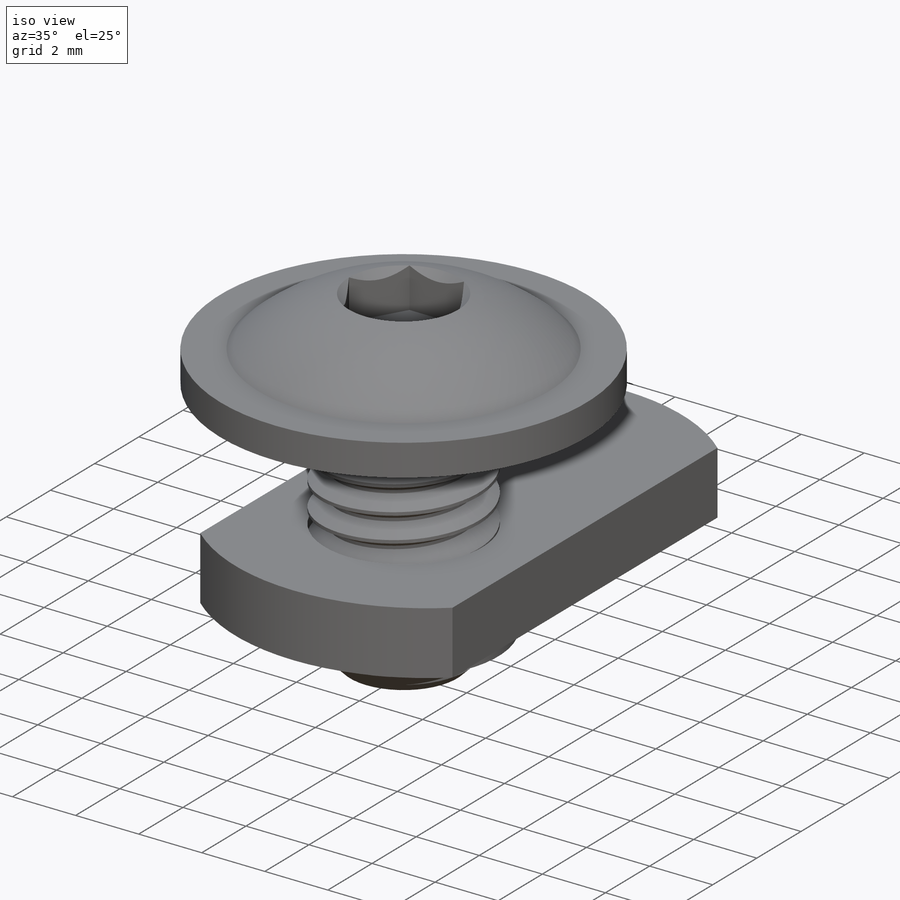
[diagram: iso view]
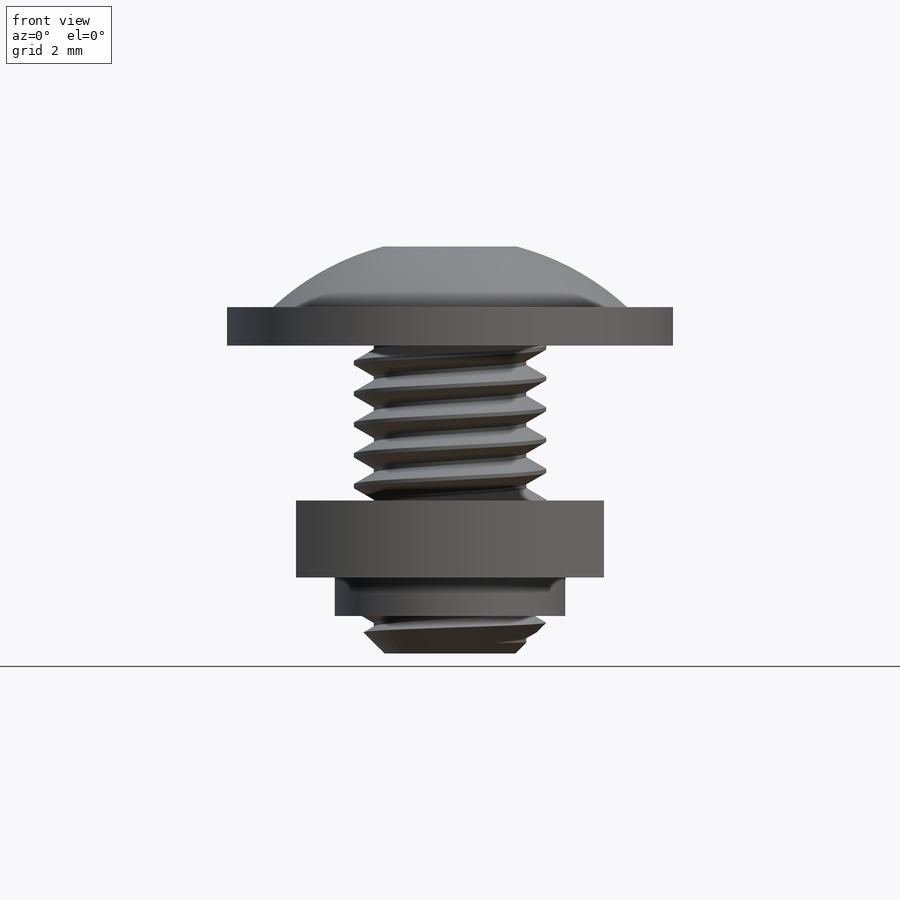
[diagram: front view]
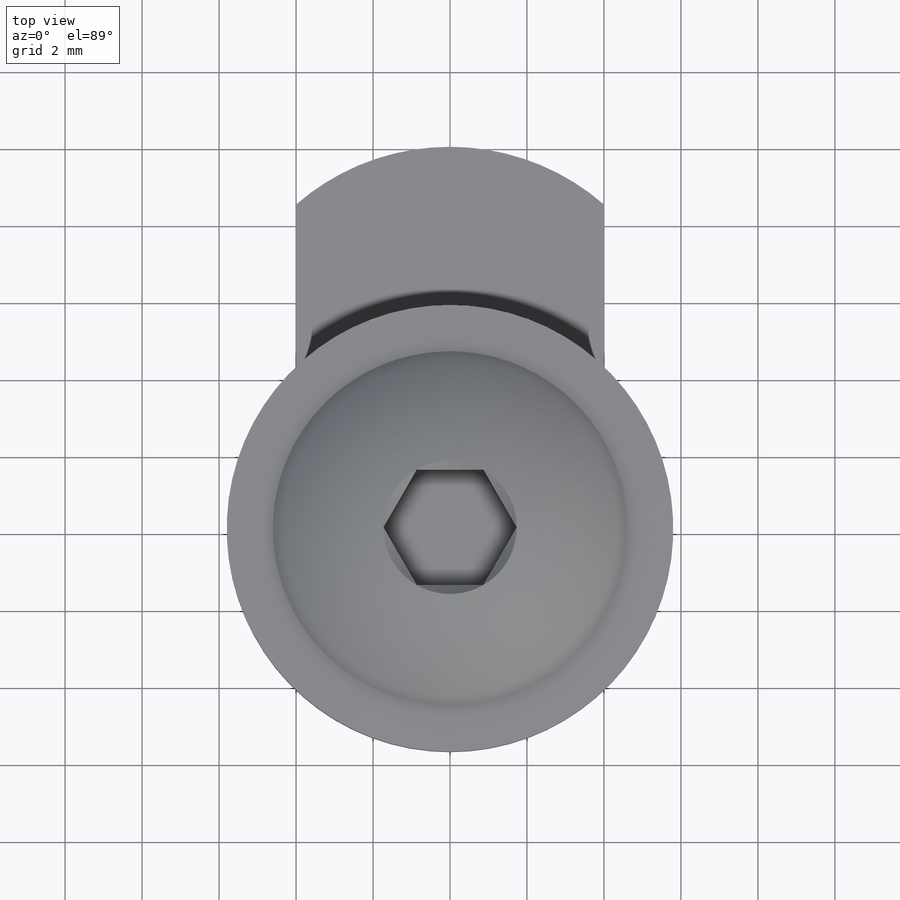
[diagram: top view]
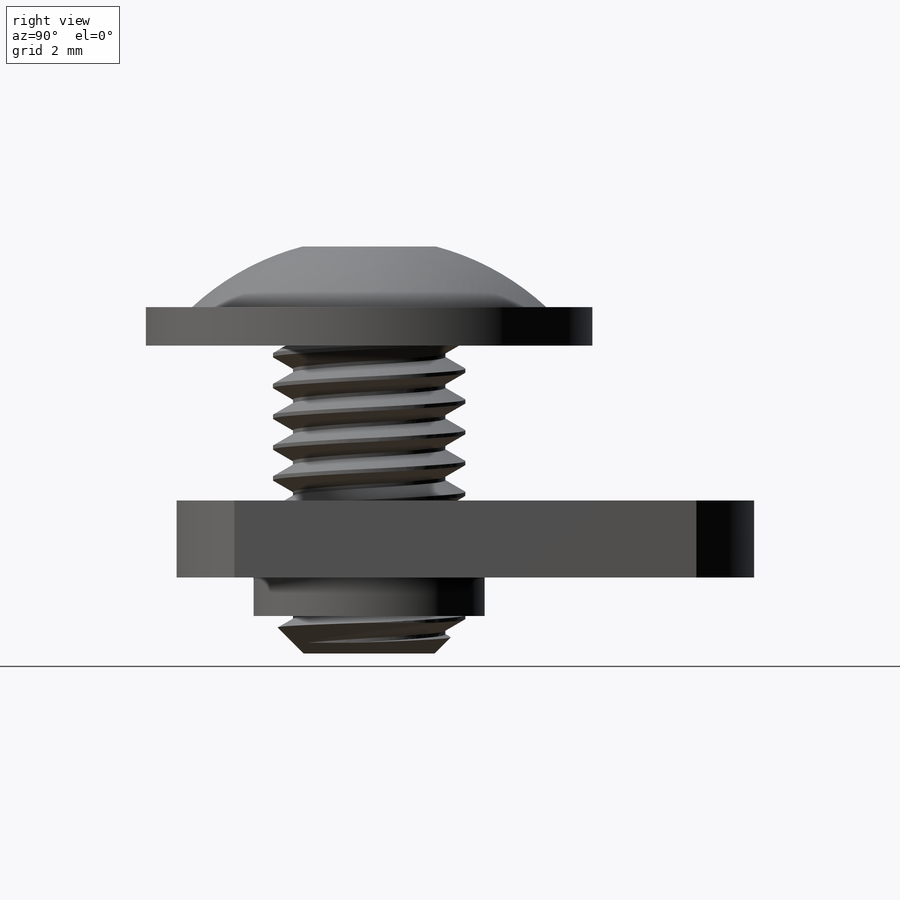
[diagram: right view]
SOLIDWORKS PART (.sldprt)
format: sldprt  version: not decoded by parser v0  size: 762,368 bytes
history: native  units: mm
features: sketch x20, cut_extrude x7, extrude x6, revolve x4, plane x3, pattern_linear x2, material x1, helix x1, chamfer x1, sweep x1 (+18 scaffold rows collapsed; 6 parser-record rows omitted)
feature tree (70):
  scaffold x18  (default folders/planes/origin — collapsed)
  material  "Material <not specified>"
  sketch  "Sketch1"  dims[screw od=5.0mm head od=9.2mm D3=7.44mm D4=1.0mm head height=2.8mm screw length=8.0mm]
  sketch  "Sketch2"
  revolve  "Revolve2"  Angle=360deg
  sketch  "Sketch3"  dims[D1=0.0mm]
  helix  "Helix/Spiral1"  Pitch=8.1875mm pitch=0.8mm
  chamfer  "Chamfer1"  Distance=0.8mm Angle=45deg
  sketch  "Sketch4"  dims[c1.D1=~1.318145mm c2.D1=60.0deg c2.D2=0.1mm c2.D3=0.4mm]
  sweep  "Cut-Sweep1"
  sketch  "Sketch5"
  revolve  "Revolve3"  Angle=360deg
  sketch  "Sketch20"  dims[D1=11.6mm]
  extrude  "Boss-Extrude1"  Depth=1mm
  plane  "Plane1"
  sketch  "Sketch6"  dims[hex=3.0mm]
  cut_extrude  "Cut-Extrude1"  Depth=1.5mm
  plane  "Plane2"
  sketch  "Sketch7"
  cut_extrude  "Cut-Extrude2"  [1 undecoded]
  plane  "Plane3"  Offset=5.525mm
  parser-record x6  (decoder bookkeeping rows leaked as tree rows — omitted from the tree; the rows remain in map.json)
  sketch  "Sketch8"  dims[c1.D1=5.0mm c1.D4=6.35mm c1.D5=6.35mm c1.D3=~7.20722mm c2.D4=5.0mm c2.D2=8.0mm c2.D3=15.0mm c3.D4=5.0mm c3.D1=12.0mm c4.D4=5.0mm]
  extrude  "Extrude1"  Depth=3mm
  sketch  "Sketch9"  dims[c1.D2=6.0mm c1.D1=0.0mm c2.D2=1.524mm]
  cut_extrude  "Cut-Extrude3"  Depth=2mm
  sketch  "Sketch10"  dims[c1.D2=~12.425077mm c1.D3=~8.686927mm c1.D4=~9.911413mm c1.D5=5.0mm c2.D2=~11.103034mm c2.D1=~8.527663mm c3.D2=7.9375mm c3.D6=~9.247188mm c3.D7=~9.247188mm c4.D2=5.0mm c4.D1=16.51mm c5.D2=25.4mm c5.D3=5.08mm c5.D4=3.9624mm c5.D1=3.9624mm c6.D2=25.4mm c6.D1=3.9624mm c6.D3=8.0mm c7.D1=15.0mm c7.D2=5.0mm c7.D4=1.5mm c8.D2=5.0mm]
  extrude  "Extrude2"  Depth=3mm
  sketch  "Sketch11"  dims[D1=1.25mm D2=0.0mm]
  cut_extrude  "Cut-Extrude4"  Depth=2mm
  sketch  "Sketch12"  dims[D1=9.398mm D2=1.27mm]
  revolve  "Revolve4"  Angle=360deg
  sketch  "Sketch13"  dims[c1.D2=~11.594454mm c1.D3=~9.969869mm c1.D4=7.9375mm c1.D1=15.875mm c2.D2=28.575mm c2.D3=3.9624mm c2.D5=3.175mm]
  extrude  "Extrude4"  Depth=5.8928mm
  sketch  "Sketch14"  dims[D1=0.0mm D2=1.524mm]
  cut_extrude  "Cut-Extrude7"  Depth=4.0894mm
  sketch  "Sketch15"
  revolve  "Revolve5"  Angle=360deg
  sketch  "Sketch16"  dims[c1.D1=~6.881939mm c1.D2=6.35mm c1.D4=~14.759338mm c2.D1=25.4mm c2.D3=12.7762mm c2.D4=47.3964mm c2.D5=~2.55524mm]
  extrude  "Extrude5"  Depth=4.0894mm
  sketch  "Sketch17"  dims[D1=0.0mm D2=1.524mm D3=1.524mm]
  pattern_linear  "LPattern1"  Count1=2 Count2=1 Spacing1=25.4mm Spacing2=0.254mm
  cut_extrude  "Cut-Extrude9"  Depth=2.667mm
  sketch  "Sketch18"  dims[c1.D1=~15.546936mm c1.D2=7.9375mm c1.D4=~15.550577mm c1.D5=~11.509375mm c2.D1=38.1mm c2.D3=15.875mm c2.D4=3.175mm c2.D5=71.374mm]
  extrude  "Extrude6"  Depth=5.9944mm
  sketch  "Sketch19"  dims[D1=0.0mm D2=1.524mm D3=1.524mm]
  cut_extrude  "Cut-Extrude10"  Depth=3.81mm
  pattern_linear  "LPattern2"  Count1=2 Count2=1 Spacing1=38.1mm Spacing2=0.254mm
decode coverage: 36 of 42 modeling features carry decoded parameters
note: ~ marks probable driven/reference dimensions
note: 1 parameter value undecoded
note: suppression state not decoded; provenance and decode notes live in map.json
